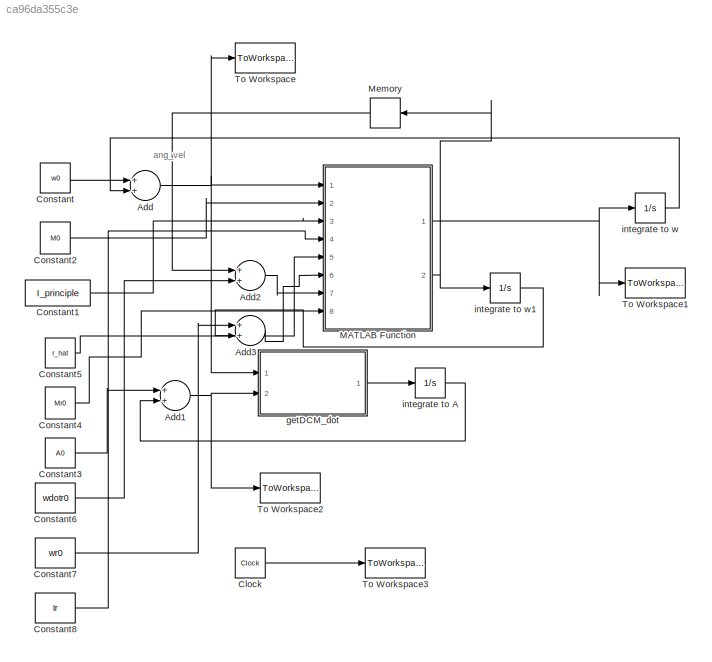
MODEL slx_ca96da355c3e
KIND model
CONFIG AbsTol = auto
CONFIG FixedStep = auto
CONFIG MaxStep = auto
CONFIG MinStep = auto
CONFIG RelTol = 1e-3
CONFIG SampleTimeConstraint = Unconstrained
CONFIG Solver = ode113
CONFIG SolverMode = Auto
CONFIG SolverName = ode113
CONFIG StartTime = 0.0
CONFIG StopTime = t_total
BLOCK [Sum] Add
  InputSameDT = off
  OutDataTypeStr = Inherit: Inherit via internal rule
  Ports = [2, 1]
  SaturateOnIntegerOverflow = off
BLOCK [Sum] Add1
  InputSameDT = off
  OutDataTypeStr = Inherit: Inherit via internal rule
  Ports = [2, 1]
  SaturateOnIntegerOverflow = off
BLOCK [Sum] Add2
  InputSameDT = off
  OutDataTypeStr = Inherit: Inherit via internal rule
  Ports = [2, 1]
  SaturateOnIntegerOverflow = off
BLOCK [Sum] Add3
  InputSameDT = off
  OutDataTypeStr = Inherit: Inherit via internal rule
  Ports = [2, 1]
  SaturateOnIntegerOverflow = off
BLOCK [Clock] Clock
BLOCK [Constant] Constant
  Value = w0
BLOCK [Constant] Constant1
  Value = I_principle
BLOCK [Constant] Constant2
  Value = M0
BLOCK [Constant] Constant3
  Value = A0
BLOCK [Constant] Constant4
  Value = Mr0
BLOCK [Constant] Constant5
  Value = r_hat
BLOCK [Constant] Constant6
  Value = wdotr0
BLOCK [Constant] Constant7
  Value = wr0
BLOCK [Constant] Constant8
  Value = Ir
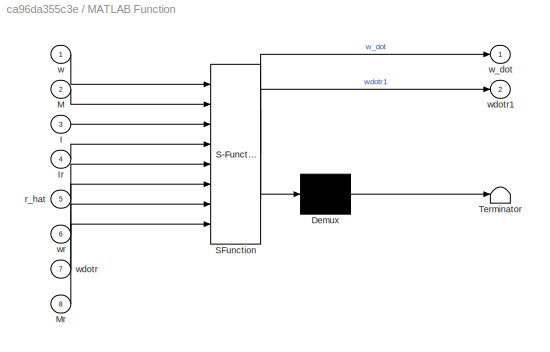
BLOCK [SubSystem] MATLAB Function
  ErrorFcn = Stateflow.Translate.translate
  PermitHierarchicalResolution = ExplicitOnly
  Ports = [8, 2]
  RequestExecContextInheritance = off
  SFBlockType = MATLAB Function
  TreatAsAtomicUnit = on
BLOCK [Demux] MATLAB Function/ Demux 
  Outputs = 1
  Ports = [1, 1]
BLOCK [S-Function] MATLAB Function/ SFunction 
  EnableBusSupport = on
  FunctionName = sf_sfun
  PortCounts = [8 3]
  Ports = [8, 3]
  Tag = Stateflow S-Function eulerSIM_momWheel 2
BLOCK [Terminator] MATLAB Function/ Terminator 
BLOCK [Inport] MATLAB Function/I
  IconDisplay = Port number
  Port = 3
BLOCK [Inport] MATLAB Function/Ir
  IconDisplay = Port number
  Port = 4
BLOCK [Inport] MATLAB Function/M
  IconDisplay = Port number
  Port = 2
BLOCK [Inport] MATLAB Function/Mr
  IconDisplay = Port number
  Port = 8
BLOCK [Inport] MATLAB Function/r_hat
  IconDisplay = Port number
  Port = 5
BLOCK [Inport] MATLAB Function/w
  IconDisplay = Port number
BLOCK [Outport] MATLAB Function/w_dot
  IconDisplay = Port number
BLOCK [Inport] MATLAB Function/wdotr
  IconDisplay = Port number
  Port = 7
BLOCK [Outport] MATLAB Function/wdotr1
  IconDisplay = Port number
  Port = 2
BLOCK [Inport] MATLAB Function/wr
  IconDisplay = Port number
  Port = 6
BLOCK [Memory] Memory
BLOCK [ToWorkspace] To Workspace
  FixptAsFi = on
  MaxDataPoints = inf
  Ports = [1]
  SampleTime = -1
  Save2DSignal = 3-D array (concatenate along third dimension)
  VariableName = ang_vel
BLOCK [ToWorkspace] To Workspace1
  FixptAsFi = on
  MaxDataPoints = inf
  Ports = [1]
  SampleTime = -1
  Save2DSignal = 3-D array (concatenate along third dimension)
  VariableName = ang_accel
BLOCK [ToWorkspace] To Workspace2
  FixptAsFi = on
  MaxDataPoints = inf
  Ports = [1]
  SampleTime = -1
  Save2DSignal = 3-D array (concatenate along third dimension)
  VariableName = A_DCM
BLOCK [ToWorkspace] To Workspace3
  FixptAsFi = on
  MaxDataPoints = inf
  Ports = [1]
  SampleTime = -1
  Save2DSignal = 3-D array (concatenate along third dimension)
  VariableName = tout
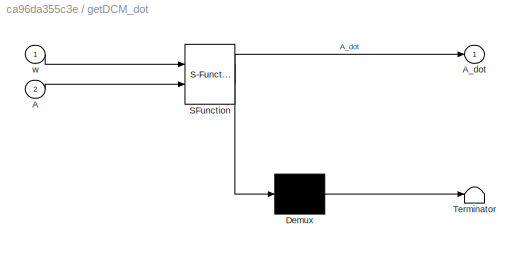
BLOCK [SubSystem] getDCM_dot
  ErrorFcn = Stateflow.Translate.translate
  PermitHierarchicalResolution = ExplicitOnly
  Ports = [2, 1]
  RequestExecContextInheritance = off
  SFBlockType = MATLAB Function
  TreatAsAtomicUnit = on
BLOCK [Demux] getDCM_dot/ Demux 
  Outputs = 1
  Ports = [1, 1]
BLOCK [S-Function] getDCM_dot/ SFunction 
  EnableBusSupport = on
  FunctionName = sf_sfun
  PortCounts = [2 2]
  Ports = [2, 2]
  Tag = Stateflow S-Function eulerSIM_momWheel 1
BLOCK [Terminator] getDCM_dot/ Terminator 
BLOCK [Inport] getDCM_dot/A
  IconDisplay = Port number
  Port = 2
BLOCK [Outport] getDCM_dot/A_dot
  IconDisplay = Port number
BLOCK [Inport] getDCM_dot/w
  IconDisplay = Port number
BLOCK [Integrator] integrate to A
  Ports = [1, 1]
BLOCK [Integrator] integrate to w
  Ports = [1, 1]
BLOCK [Integrator] integrate to w1
  Ports = [1, 1]
ANNOTATION (root): ang_vel
NET Add1:1 -> To Workspace2:1, getDCM_dot:2
LINE Add2:1 -> MATLAB Function:7
LINE Add3:1 -> MATLAB Function:6
NET Add:1 -> MATLAB Function:1, To Workspace:1, getDCM_dot:1
LINE Clock:1 -> To Workspace3:1
LINE Constant1:1 -> MATLAB Function:3
LINE Constant2:1 -> MATLAB Function:2
LINE Constant3:1 -> Add1:1
LINE Constant4:1 -> MATLAB Function:8
LINE Constant5:1 -> MATLAB Function:5
LINE Constant6:1 -> Add2:2
LINE Constant7:1 -> Add3:1
LINE Constant8:1 -> MATLAB Function:4
LINE Constant:1 -> Add:1
NET MATLAB Function:1 -> To Workspace1:1, integrate to w:1
NET MATLAB Function:2 -> Memory:1, integrate to w1:1
LINE Memory:1 -> Add2:1
LINE getDCM_dot:1 -> integrate to A:1
LINE integrate to A:1 -> Add1:2
LINE integrate to w1:1 -> Add3:2
LINE integrate to w:1 -> Add:2
note: NET lines group one-source signal fan-out (src -> all destinations, sorted); 1:1 wires keep LINE
CHART getDCM_dot states=1 transitions=1
  STATE_LABEL 'eML_blk_kernel()'
  STATE_LABEL 'SCRIPT:\nfunction A_dot   = getDCM_dot( w, A )\n%GETDCM_DOT calculate time-derivative of DCM\n% w is ang vel of body axes w.r.t. inertial\nA_dot = -[0 -w(3) w(2); w(3) 0 -w(1); -w(2) w(1) 0]*A;\n\nend\n\n'
CHART MATLAB Function states=1 transitions=1
  STATE_LABEL 'eML_blk_kernel()'
  STATE_LABEL 'SCRIPT:\nfunction [w_dot, wdotr1] = eulerRHS_dual(w, M, I, Ir, r_hat, wr, wdotr, Mr)\n% principle axis euler eq\n% w is 3x1 rotational velocity\n% M is 3x1 external torques\n% includes momentum wheel\nIx = I(1,1); Iy = I(2,2); Iz = I(3,3);\nw_dot = zeros(3,1);\nw_dot(1) = (M(1) - (Iz - Iy)*w(2)*w(3) ...\n  - Ir*wdotr*r_hat(1) - Ir*wr*(w(2)*r_hat(3) - w(3)*r_hat(2))) / Ix;\nw_dot(2) = (M(2) - (Ix - Iz)*w(1)*...<+211ch>'
